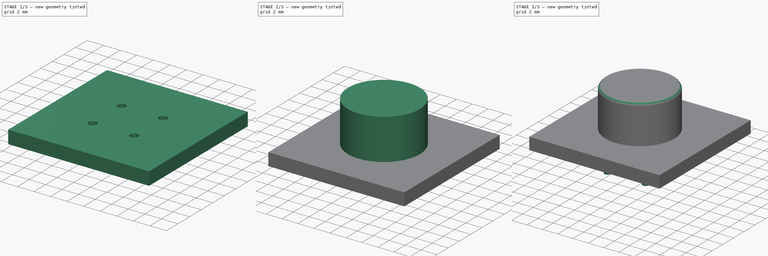
[diagram: build sequence overview — one tinted view per stage of 3, left to right]
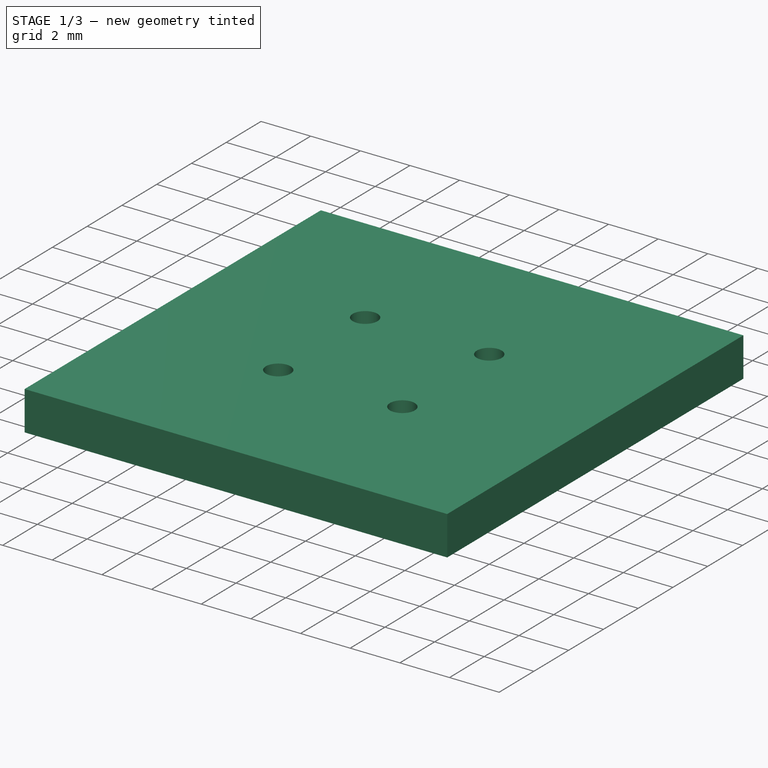
[diagram: stage 1 of 3 — iso view after this stage's code; geometry added in this stage tinted green]
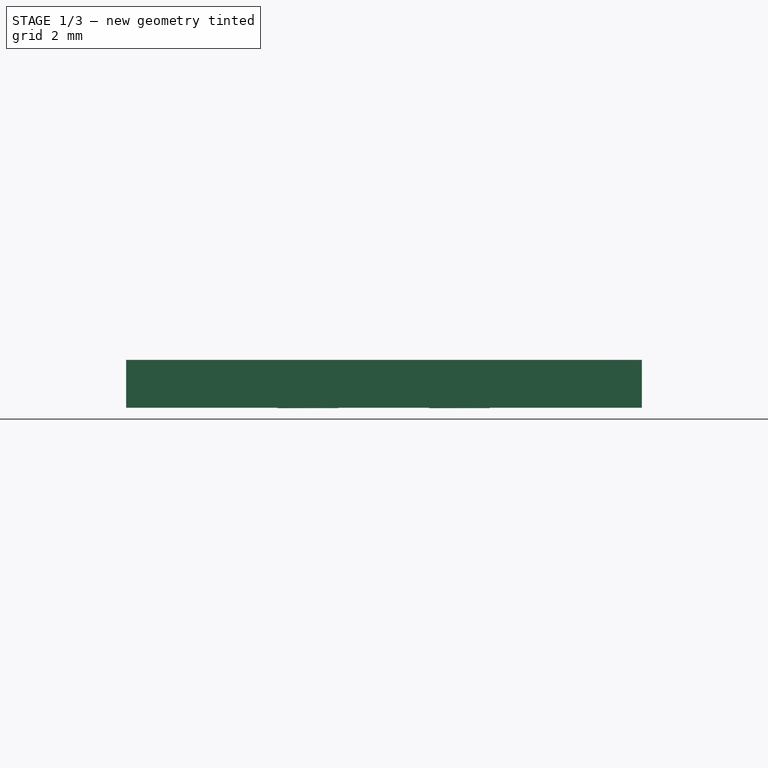
[diagram: stage 1 of 3 — front view after this stage's code; geometry added in this stage tinted green]
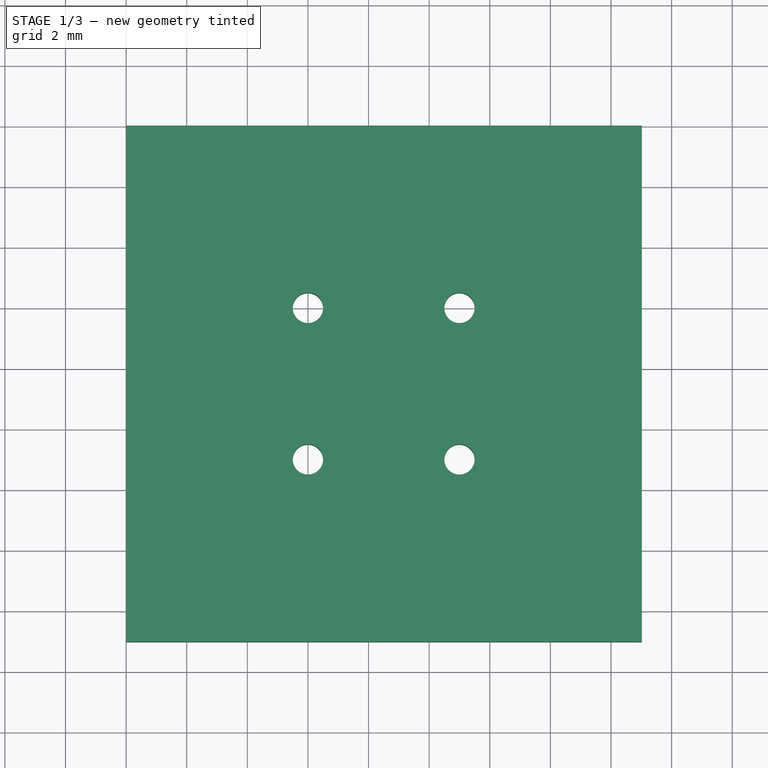
[diagram: stage 1 of 3 — top view after this stage's code; geometry added in this stage tinted green]
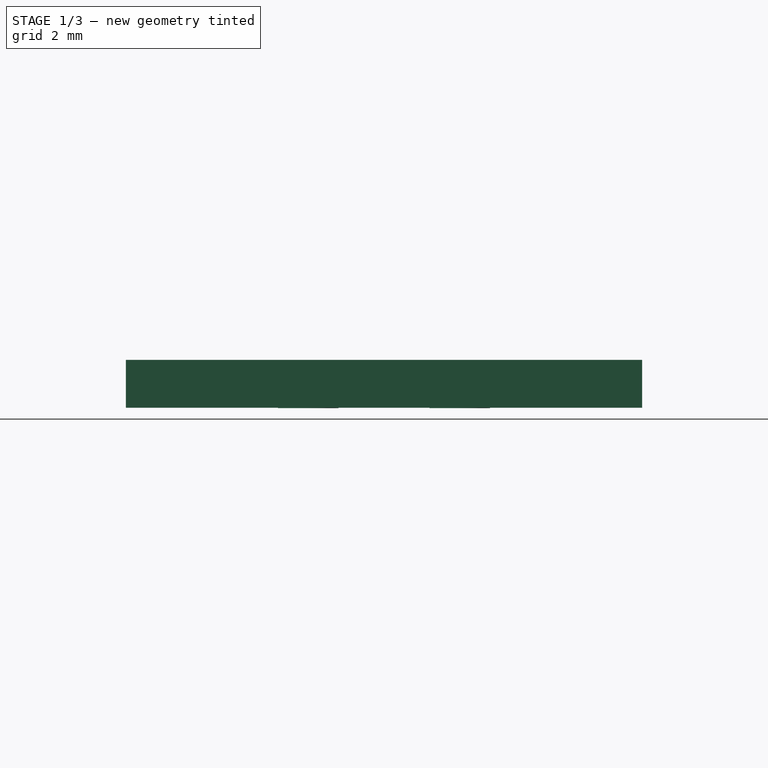
[diagram: stage 1 of 3 — right view after this stage's code; geometry added in this stage tinted green]
FCSTD DOCUMENT  (FreeCAD 0.16R6712 (Git))
Label: Diode_Bridge_Round_D9.0mm
License: All rights reserved
LicenseURL: http://en.wikipedia.org/wiki/All_rights_reserved
objects: Part::FeaturePython×7, Sketcher::SketchObject×2, PartDesign::Pad×2, PartDesign::Fillet×1, Part::MultiFuse×1, App::DocumentObjectGroup×1
note: 15 computed .brp shape members not serialized (recipe doc carries the construction recipe); baked Part::Feature solids carry a one-line shape summary decoded from their .brp

FEATURE [Part::FeaturePython] BotPads  # a2plus imported part (geometry in sourceFile) (typed FeaturePython)
  fixedPosition = true
FEATURE [Part::FeaturePython] THPs  label="PTHs"  # a2plus imported part (geometry in sourceFile) (typed FeaturePython)
  fixedPosition = true
FEATURE [Part::FeaturePython] newPCB  label="Pcb"  # a2plus imported part (geometry in sourceFile) (typed FeaturePython)
  fixedPosition = true
FEATURE [App::DocumentObjectGroup] Diode_Bridge_Round_D9_0mm_fp
  Group = -> [FCrtYd_lines,FFab_lines,Filk_lines,TopPads,BotPads,THPs,newPCB]
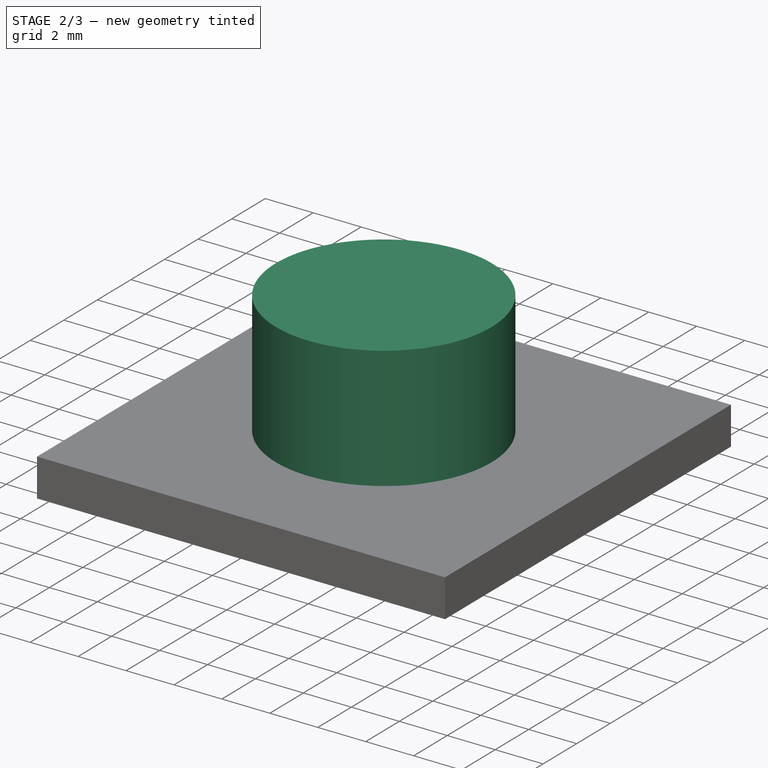
[diagram: stage 2 of 3 — iso view after this stage's code; geometry added in this stage tinted green]
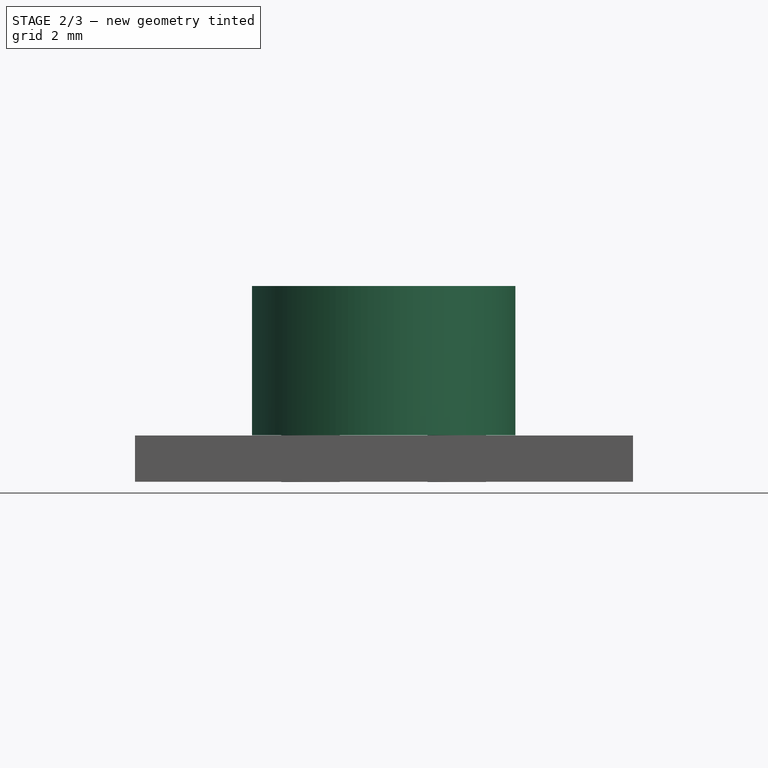
[diagram: stage 2 of 3 — front view after this stage's code; geometry added in this stage tinted green]
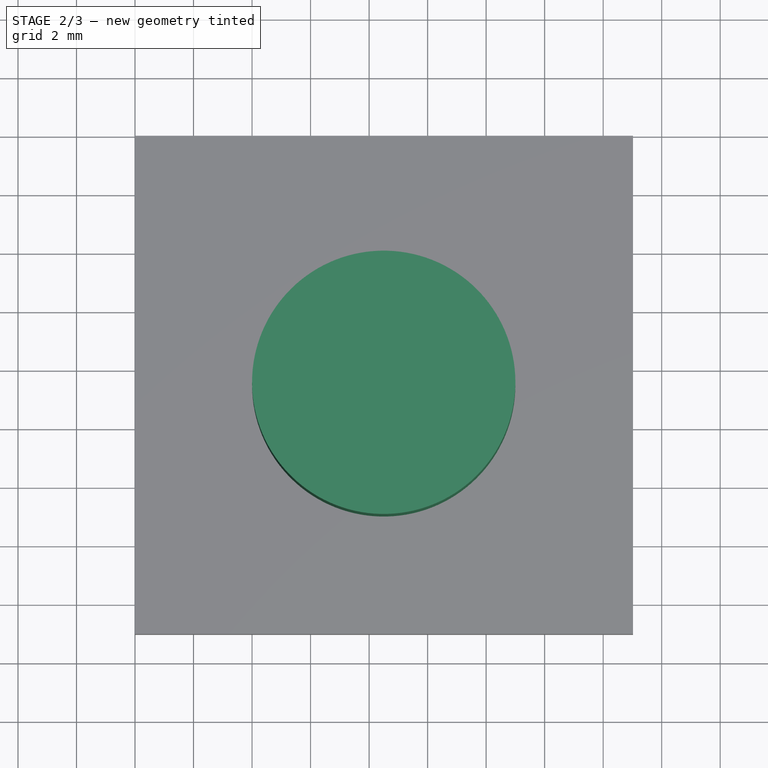
[diagram: stage 2 of 3 — top view after this stage's code; geometry added in this stage tinted green]
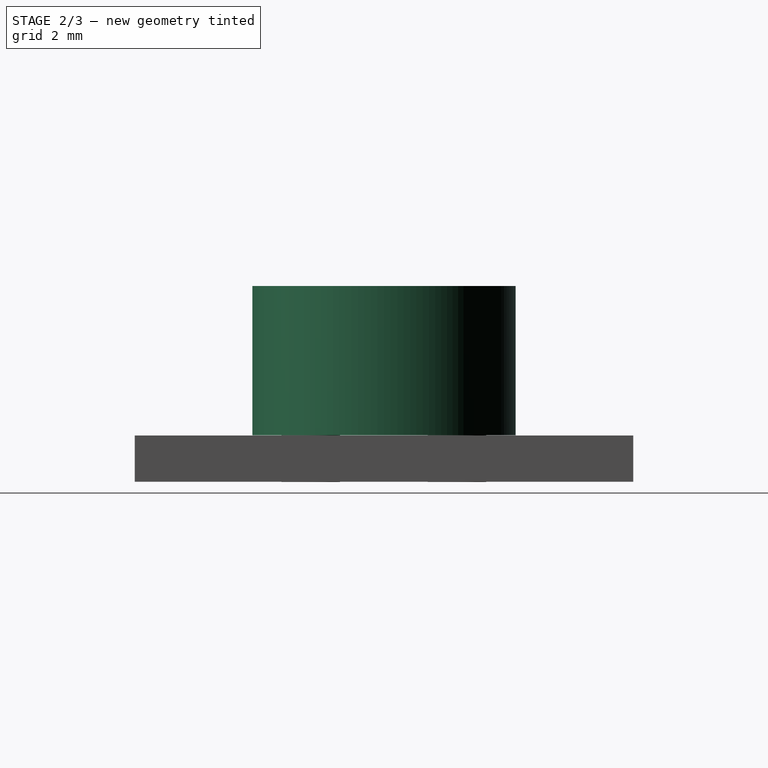
[diagram: stage 2 of 3 — right view after this stage's code; geometry added in this stage tinted green]
FEATURE [Sketcher::SketchObject] Sketch001
  sketch-geometry (1):
    g0: Circle CenterX=2.5 CenterY=-2.5 CenterZ=0 NormalX=0 NormalY=0 NormalZ=1 Radius=4.5
  constraints (3):
    c: DistanceX(g-1,g0) = 2.5
    c: DistanceY(g0,g-1) = 2.5
    c: Radius(g0) = 4.5
FEATURE [PartDesign::Pad] Pad001
  Length = 5.1
  Length2 = 100
  Sketch = -> Sketch001
  Type = 0
FEATURE [Part::FeaturePython] FCrtYd_lines  label="FCrtYd"  # a2plus imported part (geometry in sourceFile) (typed FeaturePython)
  fixedPosition = true
FEATURE [Part::FeaturePython] FFab_lines  label="FFab"  # a2plus imported part (geometry in sourceFile) (typed FeaturePython)
  fixedPosition = true
FEATURE [Part::FeaturePython] Filk_lines  label="FrontSilk"  # a2plus imported part (geometry in sourceFile) (typed FeaturePython)
  fixedPosition = true
FEATURE [Part::FeaturePython] TopPads  # a2plus imported part (geometry in sourceFile) (typed FeaturePython)
  fixedPosition = true
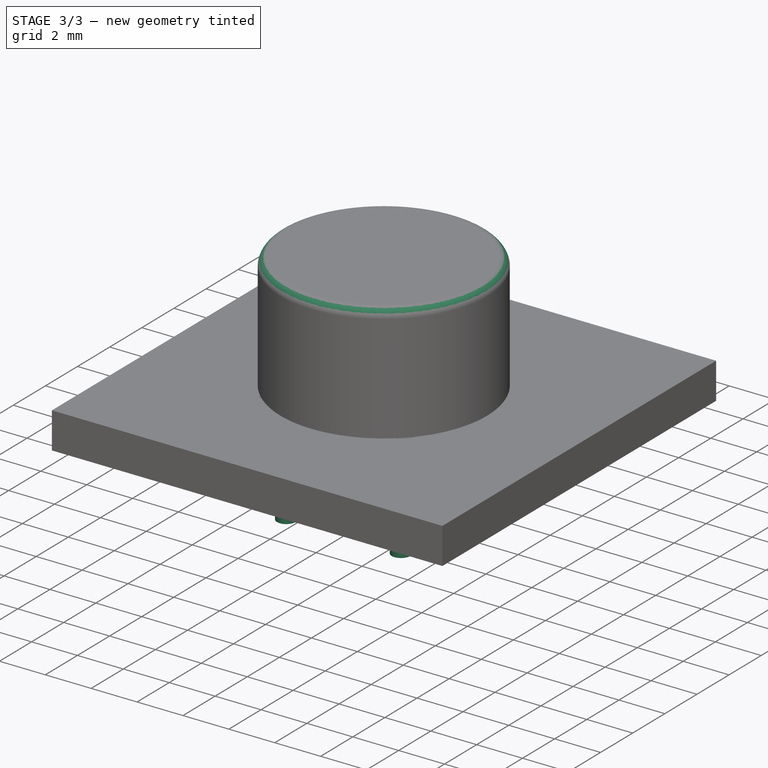
[diagram: stage 3 of 3 — iso view after this stage's code; geometry added in this stage tinted green]
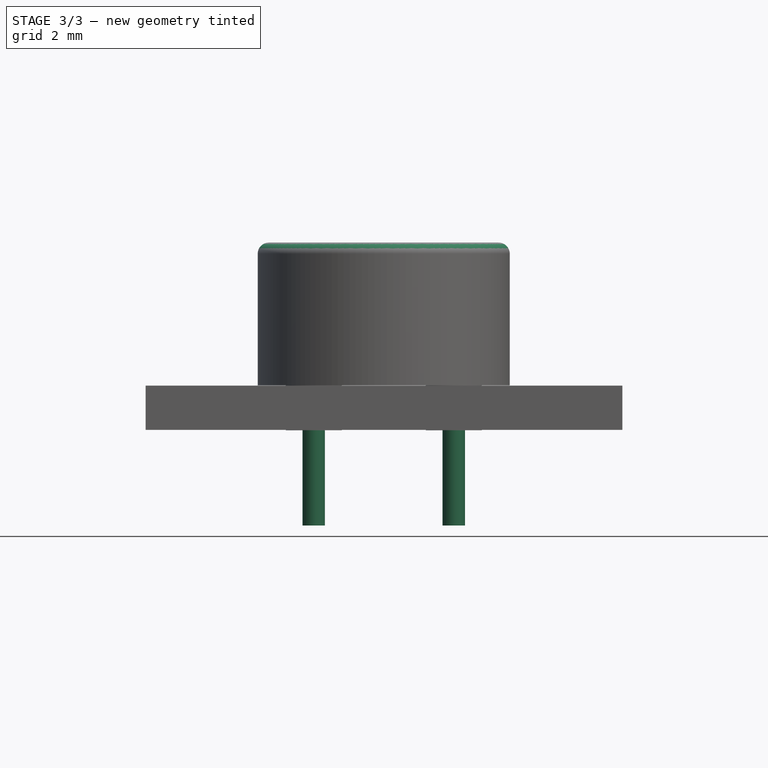
[diagram: stage 3 of 3 — front view after this stage's code; geometry added in this stage tinted green]
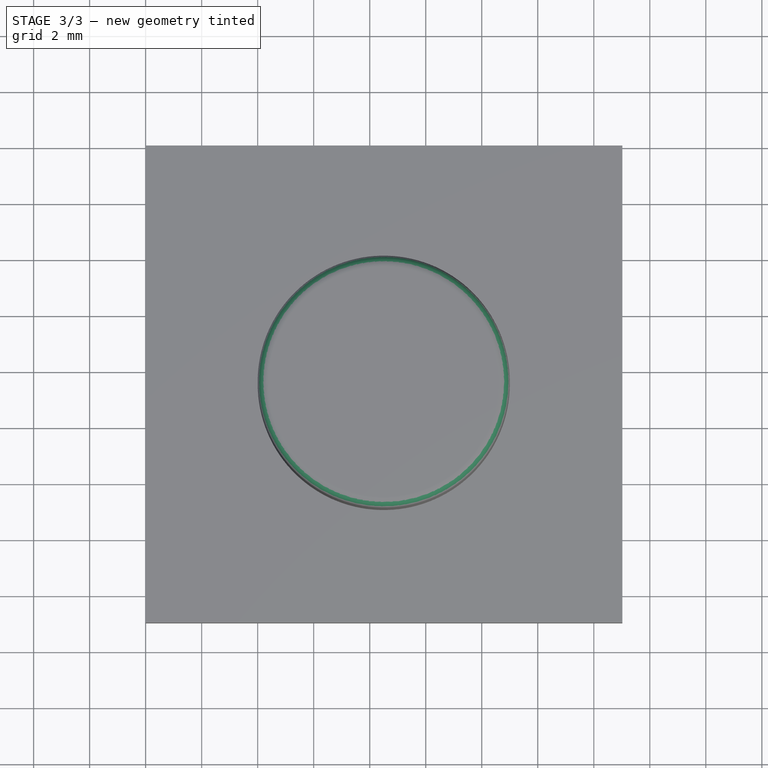
[diagram: stage 3 of 3 — top view after this stage's code; geometry added in this stage tinted green]
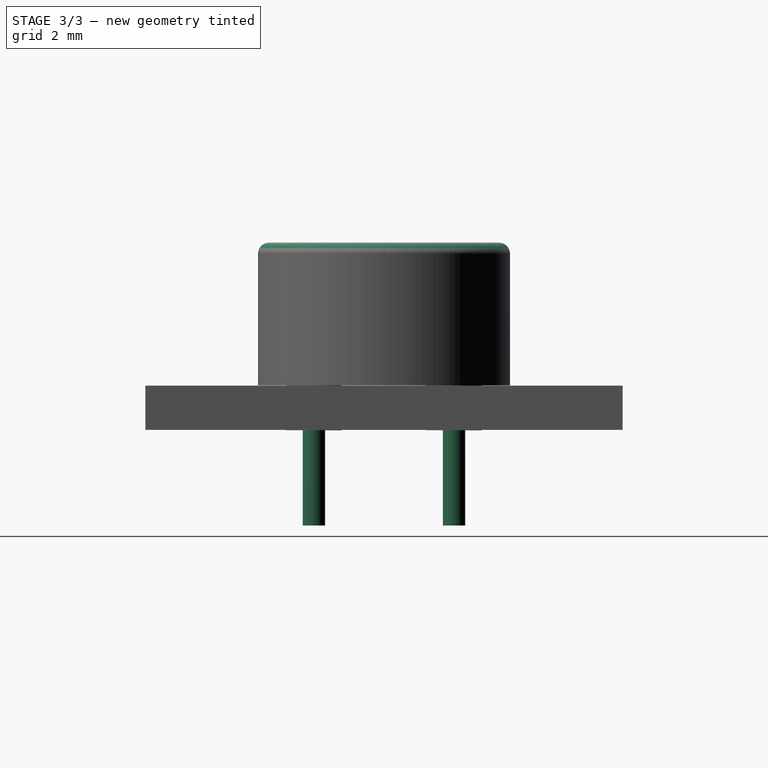
[diagram: stage 3 of 3 — right view after this stage's code; geometry added in this stage tinted green]
FEATURE [Sketcher::SketchObject] Sketch
  sketch-geometry (8):
    g0: LineSegment [constr] StartX=0 StartY=0 StartZ=0 EndX=5 EndY=0 EndZ=0
    g1: LineSegment [constr] StartX=5 StartY=0 StartZ=0 EndX=5 EndY=-5 EndZ=0
    g2: LineSegment [constr] StartX=5 StartY=-5 StartZ=0 EndX=0 EndY=-5 EndZ=0
    g3: LineSegment [constr] StartX=0 StartY=-5 StartZ=0 EndX=0 EndY=0 EndZ=0
    g4: Circle CenterX=0 CenterY=0 CenterZ=0 NormalX=0 NormalY=0 NormalZ=1 Radius=0.4
    g5: Circle CenterX=5 CenterY=0 CenterZ=0 NormalX=0 NormalY=0 NormalZ=1 Radius=0.4
    g6: Circle CenterX=5 CenterY=-5 CenterZ=0 NormalX=0 NormalY=0 NormalZ=1 Radius=0.4
    g7: Circle CenterX=0 CenterY=-5 CenterZ=0 NormalX=0 NormalY=0 NormalZ=1 Radius=0.4
  constraints (19):
    c: Coincident(g0,g1)
    c: Coincident(g1,g2)
    c: Coincident(g2,g3)
    c: Coincident(g3,g0)
    c: Horizontal(g0)
    c: Horizontal(g2)
    c: Vertical(g1)
    c: Vertical(g3)
    c: Coincident(g0,g-1)
    c: Equal(g1,g0)
    c: DistanceX(g0,g0) = 5
    c: Coincident(g4,g-1)
    c: Coincident(g5,g0)
    c: Coincident(g6,g1)
    c: Coincident(g7,g2)
    c: Equal(g7,g6)
    c: Equal(g6,g5)
    c: Equal(g5,g4)
    c: Radius(g4) = 0.4
FEATURE [PartDesign::Pad] Pad
  Length = 5
  Length2 = 100
  Reversed = true
  Sketch = -> Sketch
  Type = 0
FEATURE [PartDesign::Fillet] Fillet
  Base = -> Pad001 [Edge3]
  Radius = 0.4
FEATURE [Part::MultiFuse] Pad_mp_cp  label="Diode_Bridge_Round_D9.0mm"
  Shapes = -> [Pad,Fillet]
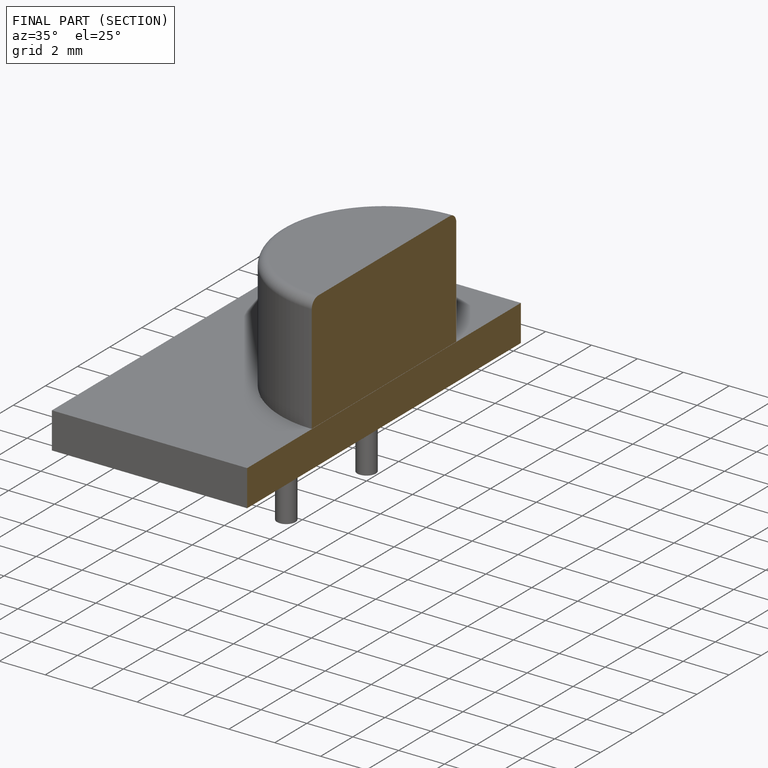
[diagram: finished part — half-section view (interior)]
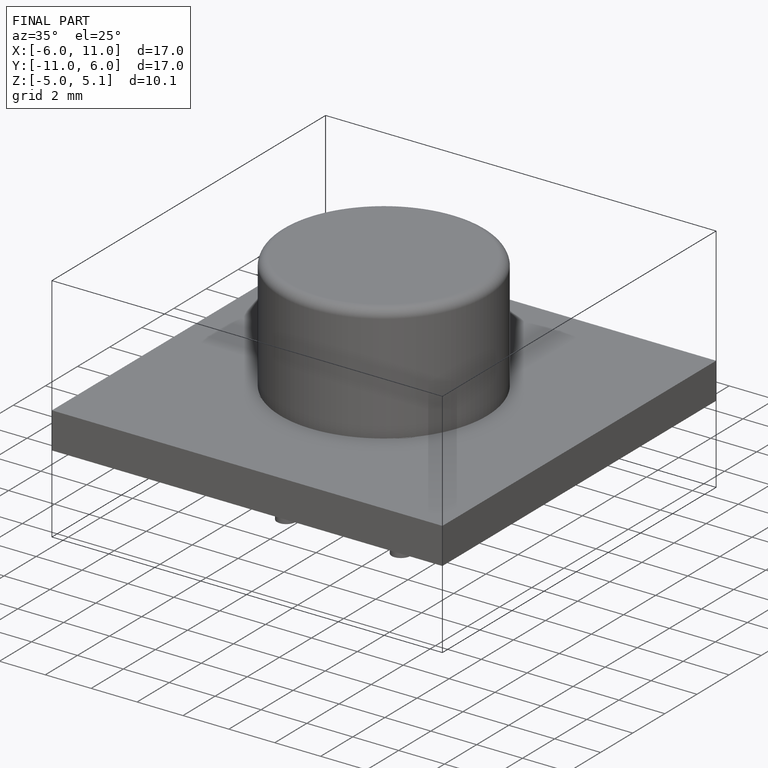
[diagram: finished part — iso view with bounding-box wireframe]
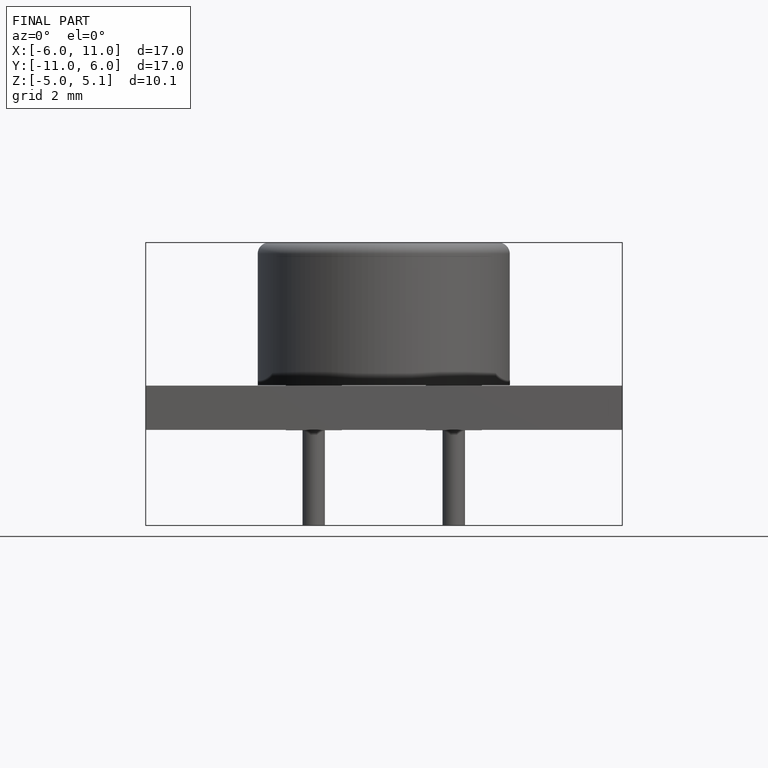
[diagram: finished part — front view with bounding-box wireframe]
